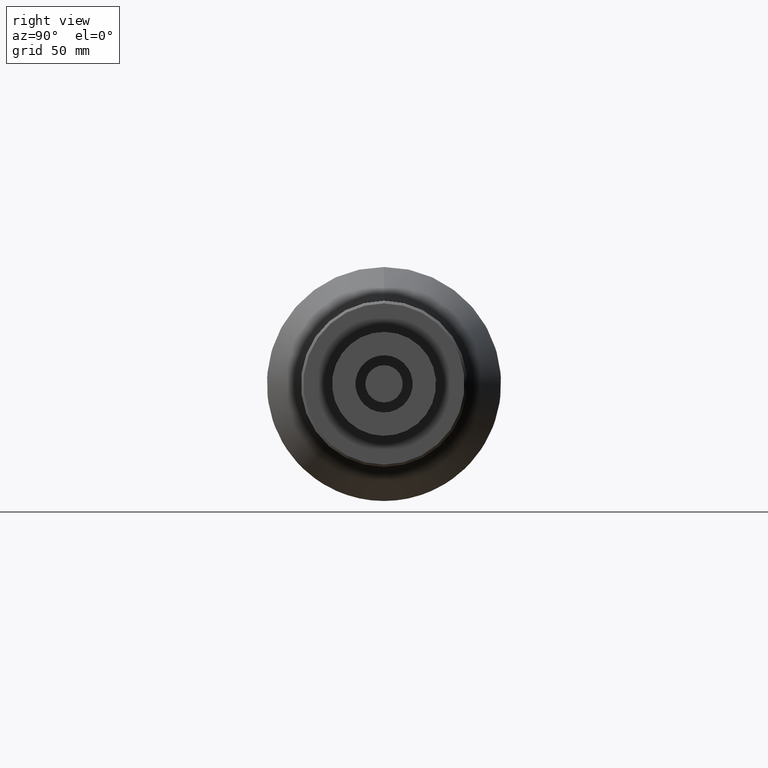
[diagram: clean part render]
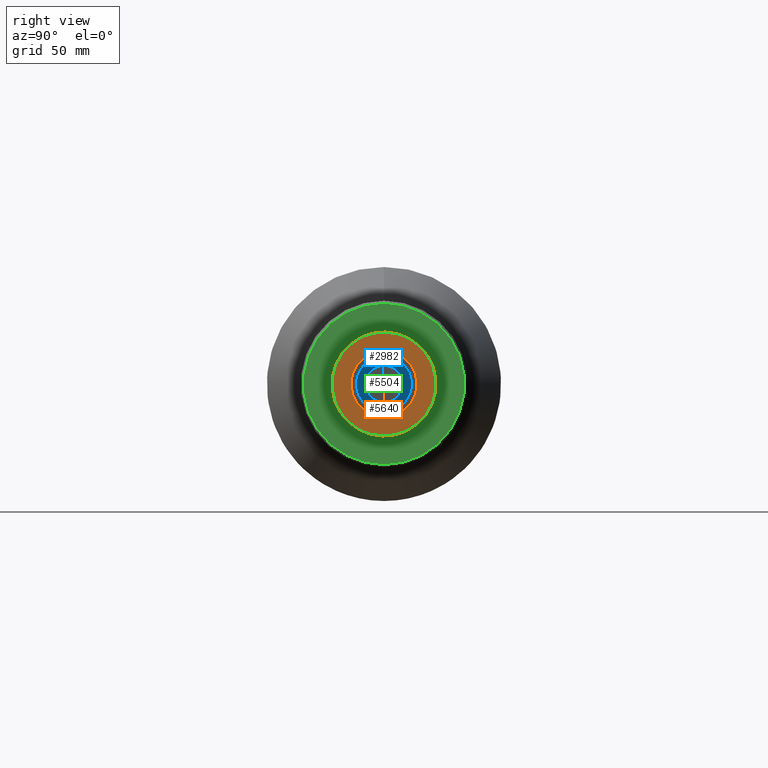
[diagram: same view with three faces highlighted in distinct colors, each labeled with its STEP entity id]
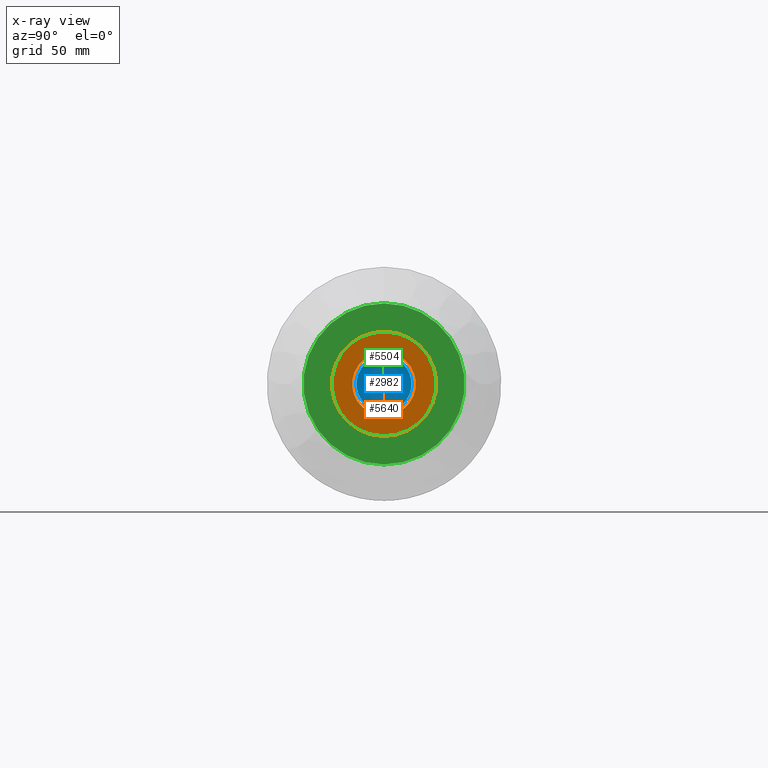
[diagram: x-ray of the same camera — body ghosted, the three highlighted faces saturated]
A machine part, right view with three faces highlighted in distinct colors.
The next image is the same camera in x-ray (body ghosted, the three faces saturated) — at least one of them is partly hidden behind the body in this view.
Their STEP definitions:

[orange] entity #5640 — the highlighted planar face has unit normal (-1, 0, 0).
#236 = AXIS2_PLACEMENT_3D ( 'NONE', #7508, #806, #1473 ) ;
#484 = EDGE_CURVE ( 'NONE', #2742, #2742, #4501, .T. ) ;
#806 = DIRECTION ( 'NONE',  ( -1.000000000000000000, -0.000000000000000000, 0.000000000000000000 ) ) ;
#1197 = CARTESIAN_POINT ( 'NONE',  ( 156.3182105647626372, 15.06239177677420393, 180.0790519195336401 ) ) ;
#1473 = DIRECTION ( 'NONE',  ( 0.000000000000000000, 0.02438687346674463241, 0.9997025959766819847 ) ) ;
#1774 = EDGE_LOOP ( 'NONE', ( #5424 ) ) ;
#1939 = CARTESIAN_POINT ( 'NONE',  ( 156.3182105647626372, 34.56870622697294948, 159.5972625306651196 ) ) ;
#2501 = PLANE ( 'NONE',  #7609 ) ;
#2742 = VERTEX_POINT ( 'NONE', #7525 ) ;
#3284 = EDGE_LOOP ( 'NONE', ( #3994 ) ) ;
#3686 = VERTEX_POINT ( 'NONE', #1197 ) ;
#3994 = ORIENTED_EDGE ( 'NONE', *, *, #4240, .F. ) ;
#4176 = CARTESIAN_POINT ( 'NONE',  ( 156.3182105647626372, 14.57465430743931201, 160.0850000000000080 ) ) ;
#4240 = EDGE_CURVE ( 'NONE', #3686, #3686, #7544, .T. ) ;
#4296 = DIRECTION ( 'NONE',  ( 0.000000000000000000, 0.02438687346674464976, 0.9997025959766818737 ) ) ;
#4501 = CIRCLE ( 'NONE', #7539, 12.20000000000000817 ) ;
#4926 = FACE_OUTER_BOUND ( 'NONE', #3284, .T. ) ;
#5001 = FACE_BOUND ( 'NONE', #1774, .T. ) ;
#5424 = ORIENTED_EDGE ( 'NONE', *, *, #484, .F. ) ;
#5493 = DIRECTION ( 'NONE',  ( 1.000000000000000000, 0.000000000000000000, -0.000000000000000000 ) ) ;
#5640 = ADVANCED_FACE ( 'NONE', ( #5001, #4926 ), #2501, .F. ) ;
#6541 = DIRECTION ( 'NONE',  ( 0.000000000000000000, 0.02438687346674465670, 0.9997025959766819847 ) ) ;
#6745 = DIRECTION ( 'NONE',  ( -1.000000000000000000, 0.000000000000000000, 0.000000000000000000 ) ) ;
#7508 = CARTESIAN_POINT ( 'NONE',  ( 156.3182105647626372, 14.57465430743931201, 160.0850000000000080 ) ) ;
#7525 = CARTESIAN_POINT ( 'NONE',  ( 156.3182105647626372, 14.87217416373359669, 172.2813716709155472 ) ) ;
#7539 = AXIS2_PLACEMENT_3D ( 'NONE', #4176, #5493, #6541 ) ;
#7544 = CIRCLE ( 'NONE', #236, 19.99999999999998934 ) ;
#7609 = AXIS2_PLACEMENT_3D ( 'NONE', #1939, #6745, #4296 ) ;

[blue] entity #2982 — the highlighted spherical surface has radius 99.24 mm.
#882 = AXIS2_PLACEMENT_3D ( 'NONE', #2063, #6867, #1498 ) ;
#967 = CARTESIAN_POINT ( 'NONE',  ( 80.02335977464220207, 14.55412918379291654, 170.6849801282473891 ) ) ;
#1147 = SPHERICAL_SURFACE ( 'NONE', #1799, 99.24000000000359023 ) ;
#1498 = DIRECTION ( 'NONE',  ( 0.000000000000000000, -0.001936332419508815517, 0.9999981253066233533 ) ) ;
#1799 = AXIS2_PLACEMENT_3D ( 'NONE', #4224, #7278, #7744 ) ;
#2063 = CARTESIAN_POINT ( 'NONE',  ( 80.02335977464220207, 14.57465430743970636, 160.0849999999992974 ) ) ;
#2252 = EDGE_CURVE ( 'NONE', #3952, #3952, #6160, .T. ) ;
#2982 = ADVANCED_FACE ( 'NONE', ( #5366 ), #1147, .F. ) ;
#3952 = VERTEX_POINT ( 'NONE', #967 ) ;
#4224 = CARTESIAN_POINT ( 'NONE',  ( 178.6956334892007305, 14.57465430743971524, 160.0849999999992974 ) ) ;
#5120 = ORIENTED_EDGE ( 'NONE', *, *, #2252, .F. ) ;
#5366 = FACE_OUTER_BOUND ( 'NONE', #7611, .T. ) ;
#6160 = CIRCLE ( 'NONE', #882, 10.59999999999790710 ) ;
#6867 = DIRECTION ( 'NONE',  ( -1.000000000000000000, -8.352928593863332575E-17, 4.872040186581354956E-17 ) ) ;
#7278 = DIRECTION ( 'NONE',  ( -0.1074501696285112828, 0.001925121967203672312, -0.9942086073617626418 ) ) ;
#7611 = EDGE_LOOP ( 'NONE', ( #5120 ) ) ;
#7744 = DIRECTION ( 'NONE',  ( -0.9942104712015479295, -0.0002080592469153204869, 0.1074499681923899858 ) ) ;

[green] entity #5504 — the highlighted planar face has unit normal (-1, 0, 0).
#106 = CARTESIAN_POINT ( 'NONE',  ( 63.41821056476265284, 14.57465430743931201, 160.0850000000000080 ) ) ;
#369 = DIRECTION ( 'NONE',  ( 0.000000000000000000, 0.000000000000000000, 1.000000000000000000 ) ) ;
#429 = CIRCLE ( 'NONE', #2199, 30.99999999999994316 ) ;
#542 = ORIENTED_EDGE ( 'NONE', *, *, #5084, .F. ) ;
#695 = AXIS2_PLACEMENT_3D ( 'NONE', #4722, #2457, #1725 ) ;
#1725 = DIRECTION ( 'NONE',  ( 0.000000000000000000, 0.000000000000000000, 1.000000000000000000 ) ) ;
#2077 = VERTEX_POINT ( 'NONE', #6167 ) ;
#2154 = CARTESIAN_POINT ( 'NONE',  ( 63.41821056476261731, 14.57465430743931201, 160.0850000000000080 ) ) ;
#2199 = AXIS2_PLACEMENT_3D ( 'NONE', #106, #7369, #6687 ) ;
#2457 = DIRECTION ( 'NONE',  ( -1.000000000000000000, 0.000000000000000000, 0.000000000000000000 ) ) ;
#3039 = FACE_OUTER_BOUND ( 'NONE', #5854, .T. ) ;
#3581 = PLANE ( 'NONE',  #695 ) ;
#3734 = CIRCLE ( 'NONE', #4365, 19.99999999999998934 ) ;
#4365 = AXIS2_PLACEMENT_3D ( 'NONE', #2154, #4547, #369 ) ;
#4431 = VERTEX_POINT ( 'NONE', #4946 ) ;
#4547 = DIRECTION ( 'NONE',  ( 1.000000000000000000, 0.000000000000000000, 0.000000000000000000 ) ) ;
#4722 = CARTESIAN_POINT ( 'NONE',  ( 63.41821056476263863, 34.57465430743931023, 160.0850000000000080 ) ) ;
#4801 = EDGE_LOOP ( 'NONE', ( #7177 ) ) ;
#4946 = CARTESIAN_POINT ( 'NONE',  ( 63.41821056476261731, 14.57465430743931201, 180.0850000000000080 ) ) ;
#5084 = EDGE_CURVE ( 'NONE', #2077, #2077, #429, .T. ) ;
#5504 = ADVANCED_FACE ( 'NONE', ( #7091, #3039 ), #3581, .F. ) ;
#5854 = EDGE_LOOP ( 'NONE', ( #542 ) ) ;
#6167 = CARTESIAN_POINT ( 'NONE',  ( 63.41821056476265284, 14.57465430743931201, 191.0849999999999511 ) ) ;
#6171 = EDGE_CURVE ( 'NONE', #4431, #4431, #3734, .T. ) ;
#6687 = DIRECTION ( 'NONE',  ( 0.000000000000000000, 0.000000000000000000, 1.000000000000000000 ) ) ;
#7091 = FACE_BOUND ( 'NONE', #4801, .T. ) ;
#7177 = ORIENTED_EDGE ( 'NONE', *, *, #6171, .F. ) ;
#7369 = DIRECTION ( 'NONE',  ( -1.000000000000000000, 0.000000000000000000, 0.000000000000000000 ) ) ;